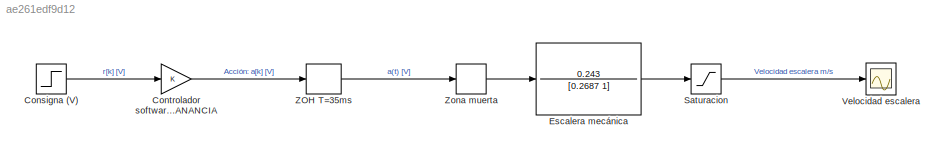
MODEL slx_ae261edf9d12
KIND model
CONFIG AbsTol = auto
CONFIG EnableMultiTasking = off
CONFIG FixedStep = auto
CONFIG MaxStep = auto
CONFIG MinStep = auto
CONFIG RelTol = 1e-3
CONFIG SampleTimeConstraint = Unconstrained
CONFIG SolverName = VariableStepAuto
CONFIG StartTime = 0.0
CONFIG StopTime = 5
BLOCK [Step] Consigna (V)
  SampleTime = 0
  Time = 0
BLOCK [Gain] Controlador software GANANCIA
BLOCK [TransferFcn] Escalera mecánica
  Denominator = [0.2687 1]
  Numerator = 0.243
BLOCK [Saturate] Saturacion
  LowerLimit = -2.11
  UpperLimit = 2.11
BLOCK [Scope] Velocidad escalera
  Floating = off
  NumInputPorts = 1
  ScopeSpecificationString = Simulink.scopes.TimeScopeBlockCfg('CurrentConfiguration', extmgr.ConfigurationSet(extmgr.Configuration('Core','General UI',true),extmgr.Configuration('Core','Source UI',true),extmgr.Configuration('Sources','WiredSimulink',true,'DataLogging',true,'DataLoggingVariableName','salidaEscalonMotor','DataLoggingSaveFormat','Array'),extmgr.Configuration('Visuals','Time Domain',true,'SerializedDisplays',{st...<+1882ch>
BLOCK [ZeroOrderHold] ZOH T=35ms
  SampleTime = 35e-3
BLOCK [DeadZone] Zona muerta
  LowerValue = -0.19
  UpperValue = 0.21
LINE Consigna (V):1 -> Controlador software GANANCIA:1
LINE Controlador software GANANCIA:1 -> ZOH T=35ms:1
LINE Escalera mecánica:1 -> Saturacion:1
LINE Saturacion:1 -> Velocidad escalera:1
LINE ZOH T=35ms:1 -> Zona muerta:1
LINE Zona muerta:1 -> Escalera mecánica:1
